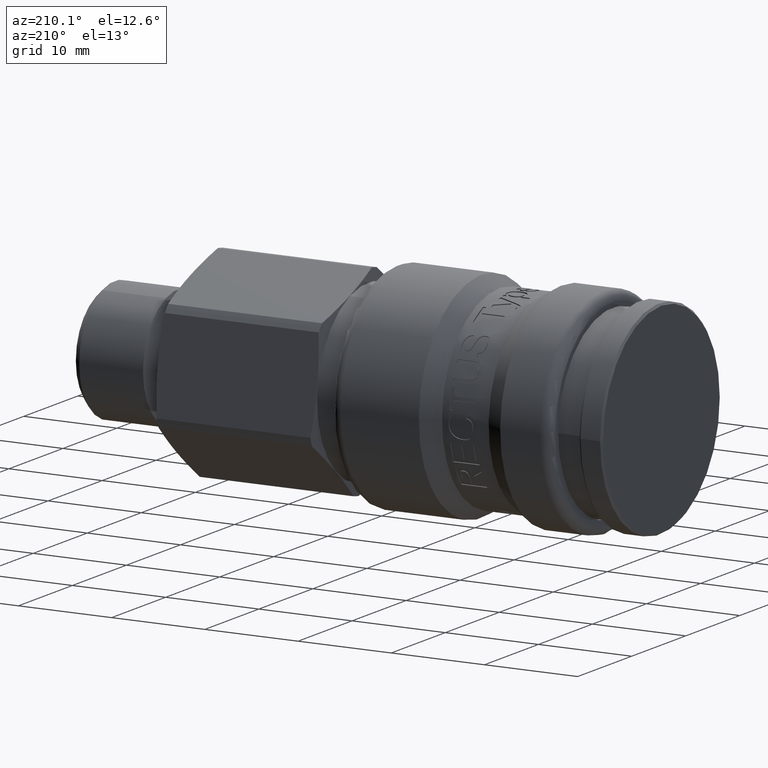
[diagram: clean part render]
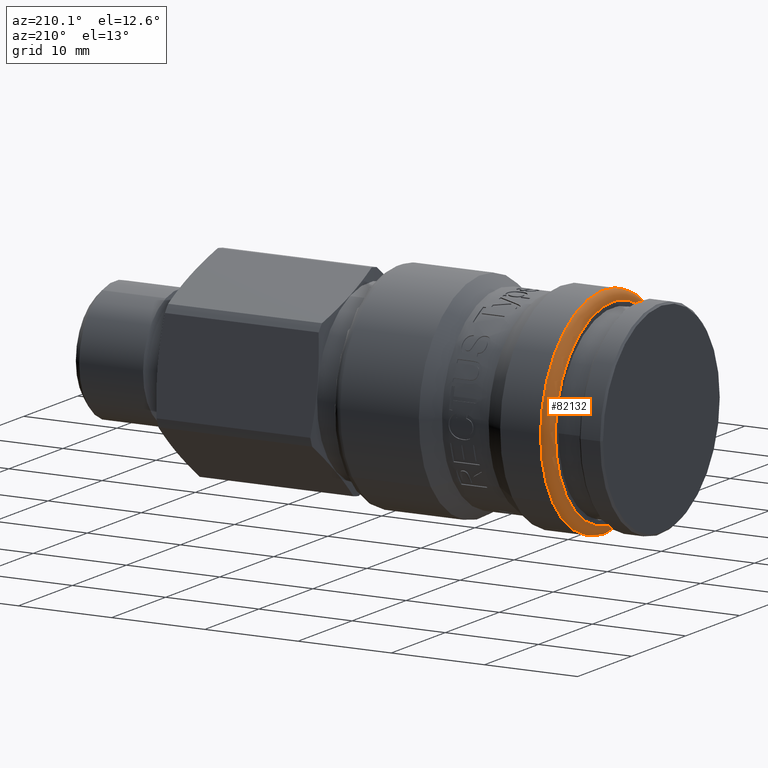
[diagram: same view with one face highlighted and labeled with its STEP entity id]
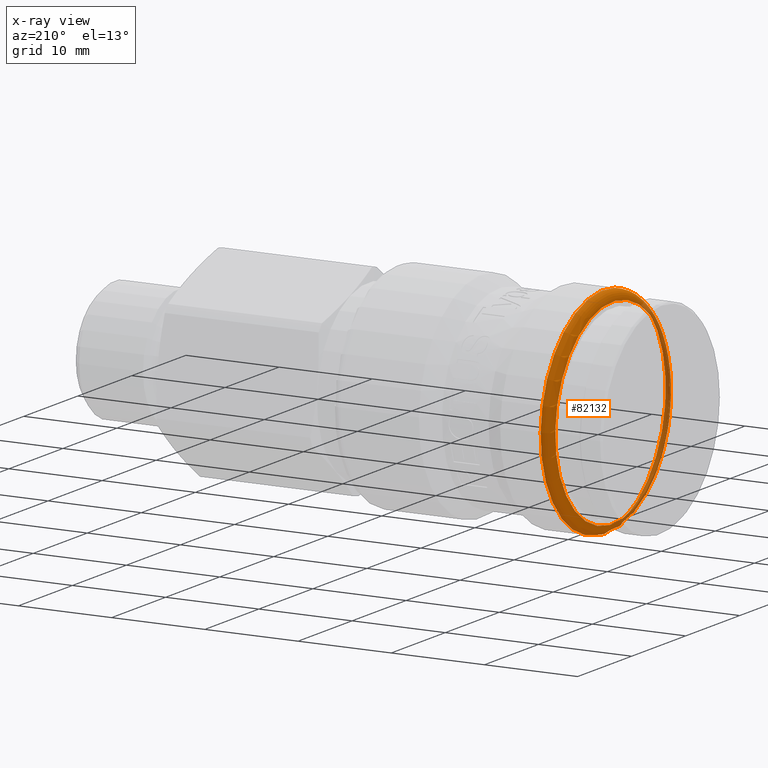
[diagram: x-ray of the same camera — body ghosted, the highlighted face saturated]
A machine part, auxiliary view. The second image highlights one B-rep face of the part: STEP entity #82132.
The next image is the same camera in x-ray: the body ghosted, the highlighted face saturated — about 21% of this face is hidden behind the body in this view.
In plain terms, the highlighted toroidal blend (fillet) surface has major radius 10.575 mm and minor (blend) radius 1 mm.
Its self-contained STEP definition (entity closure, byte-faithful):
#82105=CARTESIAN_POINT('',(6.249999999999999,0.0,0.0));
#82106=DIRECTION('',(1.0,0.0,0.0));
#82107=DIRECTION('',(0.0,-0.588500216308838,-0.80849705961398));
#82108=AXIS2_PLACEMENT_3D('',#82105,#82106,#82107);
#82109=TOROIDAL_SURFACE('',#82108,10.575000000000001,1.0);
#82110=CARTESIAN_POINT('',(5.249999999999999,8.549856405417836,-6.223389787465963));
#82111=VERTEX_POINT('',#82110);
#82112=CARTESIAN_POINT('',(5.249999999999999,0.0,0.0));
#82113=DIRECTION('',(1.0,0.0,0.0));
#82114=DIRECTION('',(0.0,-0.80849705961398,0.588500216308838));
#82115=AXIS2_PLACEMENT_3D('',#82112,#82113,#82114);
#82116=CIRCLE('',#82115,10.575000000000001);
#82117=EDGE_CURVE('',#82111,#82111,#82116,.T.);
#82118=ORIENTED_EDGE('',*,*,#82117,.T.);
#82119=EDGE_LOOP('',(#82118));
#82120=FACE_OUTER_BOUND('',#82119,.T.);
#82121=CARTESIAN_POINT('',(6.249999999999999,9.358353465031813,-6.811890003774803));
#82122=VERTEX_POINT('',#82121);
#82123=CARTESIAN_POINT('',(6.249999999999999,0.0,0.0));
#82124=DIRECTION('',(-1.0,0.0,0.0));
#82125=DIRECTION('',(0.0,-0.80849705961398,0.588500216308838));
#82126=AXIS2_PLACEMENT_3D('',#82123,#82124,#82125);
#82127=CIRCLE('',#82126,11.575000000000001);
#82128=EDGE_CURVE('',#82122,#82122,#82127,.T.);
#82129=ORIENTED_EDGE('',*,*,#82128,.T.);
#82130=EDGE_LOOP('',(#82129));
#82131=FACE_BOUND('',#82130,.T.);
#82132=ADVANCED_FACE('',(#82120,#82131),#82109,.T.);